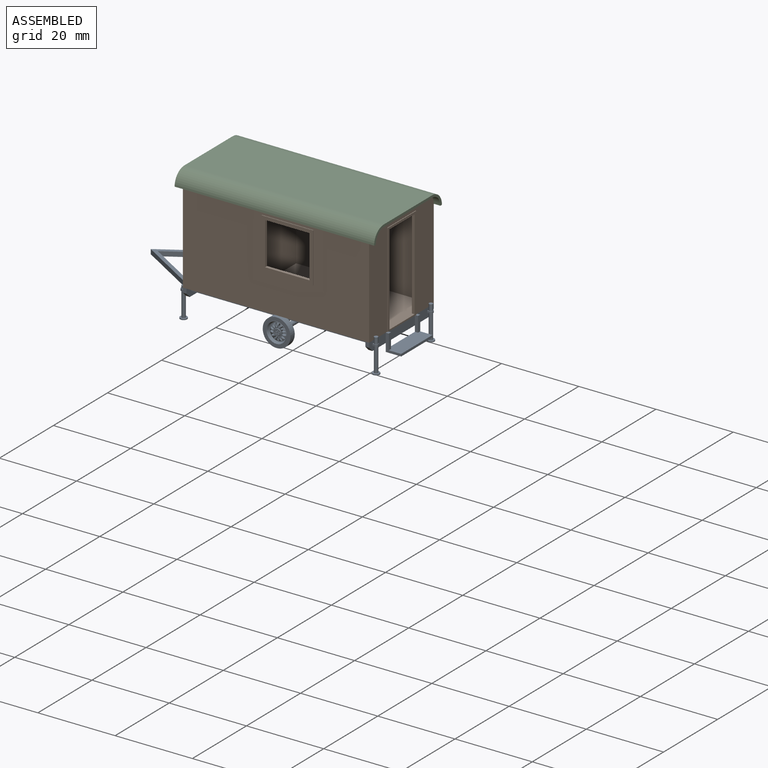
[diagram: assembled view]
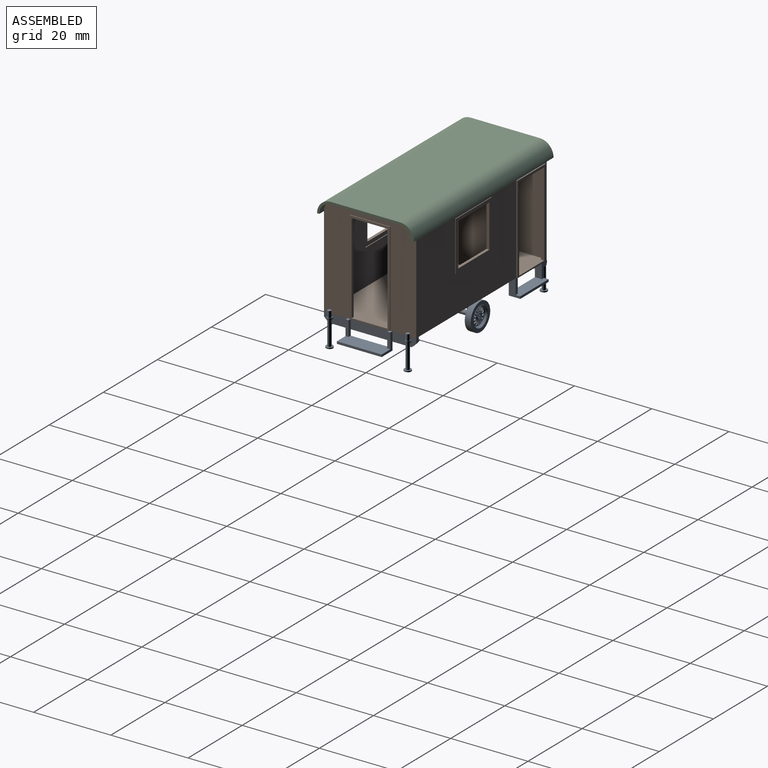
[diagram: assembled view, second angle]
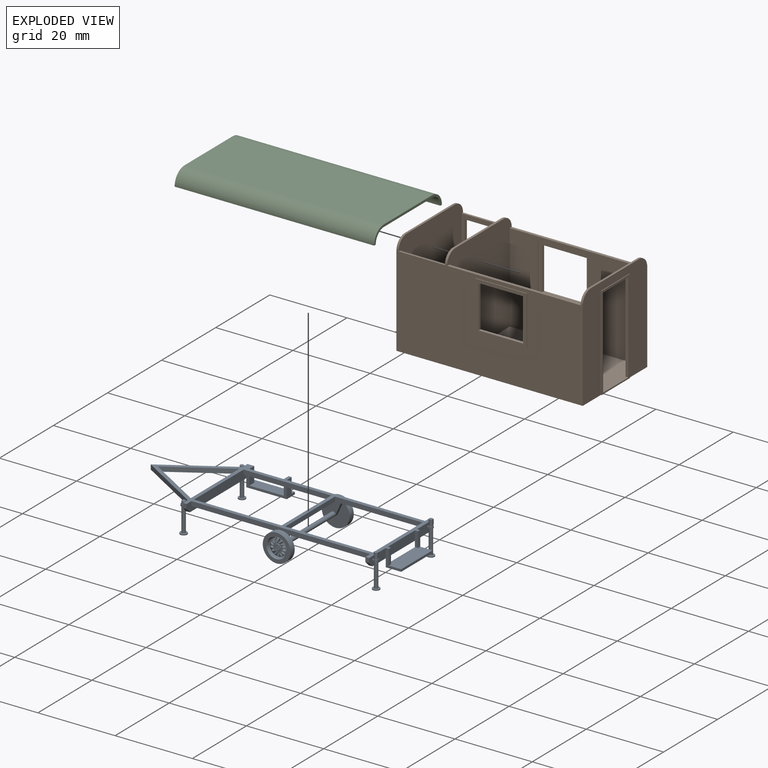
[diagram: exploded view]
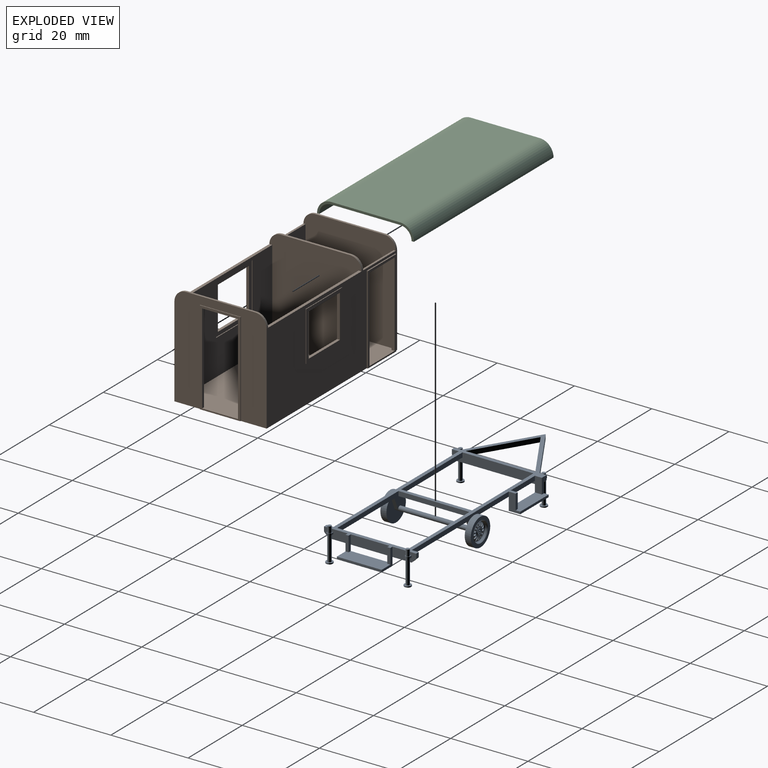
[diagram: exploded view, second angle]
ASSEMBLY  parts=3 mates=2
PART A: 184 faces, bbox 68.9x25.1x8.7 mm
  f0: plane 3.9x1.76mm, normal (0,-1,0), area 4.3mm2, adj f1,f152,f180,f181,f182,f183
  f1: plane 3.9x1.8mm, normal (-1,0,0), area 7mm2, adj f0,f2,f151,f152,f183
  f2: plane 10.5x3.3mm, normal (0,1,0), area 10.6mm2, adj f1,f3,f5,f145,f146,f150,f182,f183
  f3: plane 3.9x1.8mm, normal (1,0,0), area 7mm2, adj f2,f4,f151,f152,f183
  f4: plane 3.9x0.8mm, normal (0,-1,0), area 3.1mm2, adj f3,f5,f152,f183
  f5: plane 4.5x3mm, normal (-1,0,0), area 8.8mm2, adj f2,f4,f6,f144,f145,f152,f183
  f6: plane 35.82x1.2mm, normal (0,-1,0), area 41.4mm2, adj f5,f7,f102,f103,f150,f152
  f7: cylinder r=3.6mm len=7.2mm, axis (0,1,0), area 35.3mm2, adj f6,f8,f63
  f8: plane 7.2x6.6mm, normal (0,1,0), area 30.6mm2, adj f7,f9,f61,f62
  f9: cylinder r=0.6mm len=20.28mm, axis (0,-1,0), area 71.9mm2, adj f8,f10,f14,f58,f59,f60,f61,f62
  f10: plane 46.32x4.44mm, normal (0,1,0), area 61.8mm2, adj f9,f11,f12,f13,f61,f62,f102,f103
  f11: plane 18.36x1.2mm, normal (1,0,0), area 22mm2, adj f10,f12,f60,f152
  f12: plane 18.36x0.96mm, normal (0,0,-1), area 17.6mm2, adj f10,f11,f13,f60
  f13: plane 18.36x1.2mm, normal (-1,0,0), area 22mm2, adj f10,f12,f60,f152
  f14: plane 3.24x1.44mm, normal (0.91,0,-0.41), area 3.4mm2, adj f9,f15,f58,f60
  f15: plane 21.17x0.96mm, normal (0,0,-1), area 20.3mm2, adj f14,f16,f60,f146
  f16: plane 46.32x1.2mm, normal (0,1,0), area 54mm2, adj f15,f17,f18,f103,f146,f152
  f17: plane 21.17x0.96mm, normal (0,0,-1), area 20.3mm2, adj f16,f59,f60,f103
  f18: cylinder r=3.6mm len=7.2mm, axis (0,-1,0), area 35.3mm2, adj f16,f19,f58
  f19: plane 7.2x7.2mm, normal (0,1,0), area 18.8mm2, adj f18,f20
  f20: revolved ~5.28x5.27mm, area 14.1mm2, adj f19,f21,f23,f25,f27,f29,f31,f33
  f21: extruded ~0.98x0.89mm, area 1.9mm2, adj f20,f22
  f22: plane 0.98x0.5mm, normal (0,-1,0), area 0.4mm2, adj f21
  f23: extruded ~0.89x0.85mm, area 1.9mm2, adj f20,f24
  f24: plane 0.85x0.69mm, normal (0,1,0), area 0.4mm2, adj f23
  f25: extruded ~0.89x0.89mm, area 1.9mm2, adj f20,f26
  f26: plane 0.9x0.63mm, normal (0,1,0), area 0.4mm2, adj f25
  f27: extruded ~0.97x0.89mm, area 1.9mm2, adj f20,f28
  f28: plane 0.97x0.51mm, normal (0,1,0), area 0.4mm2, adj f27
  f29: extruded ~0.93x0.89mm, area 1.9mm2, adj f20,f30
  f30: plane 0.93x0.58mm, normal (0,1,0), area 0.4mm2, adj f29
  f31: extruded ~0.89x0.85mm, area 1.9mm2, adj f20,f32
  f32: plane 0.85x0.69mm, normal (0,1,0), area 0.4mm2, adj f31
  f33: extruded ~0.89x0.89mm, area 1.9mm2, adj f20,f34
  f34: plane 0.9x0.63mm, normal (0,1,0), area 0.4mm2, adj f33
  f35: extruded ~0.97x0.89mm, area 1.9mm2, adj f20,f36
  f36: plane 0.97x0.51mm, normal (0,1,0), area 0.4mm2, adj f35
  f37: extruded ~0.93x0.89mm, area 1.9mm2, adj f20,f38
  f38: plane 0.93x0.58mm, normal (0,1,0), area 0.4mm2, adj f37
  f39: extruded ~0.89x0.8mm, area 1.9mm2, adj f20,f40
  f40: plane 0.8x0.75mm, normal (0,1,0), area 0.4mm2, adj f39
  f41: extruded ~0.95x0.89mm, area 1.9mm2, adj f20,f42
  f42: plane 0.96x0.54mm, normal (0,1,0), area 0.4mm2, adj f41
  f43: extruded ~0.95x0.89mm, area 1.9mm2, adj f20,f44
  f44: plane 0.96x0.54mm, normal (0,1,0), area 0.4mm2, adj f43
  f45: extruded ~0.89x0.8mm, area 1.9mm2, adj f20,f46
  f46: plane 0.8x0.75mm, normal (0,1,0), area 0.4mm2, adj f45
  f47: plane 1.44x1.44mm, normal (0,1,0), area 1.3mm2, adj f20,f48,f50,f52,f54,f56
  f48: cylinder r=0.15mm len=0.3mm, axis (0,1,0), area 0.2mm2, adj f47,f49
  f49: plane 0.3x0.3mm, normal (0,1,0), area 0.1mm2, adj f48
  f50: cylinder r=0.15mm len=0.3mm, axis (0,1,0), area 0.2mm2, adj f47,f51
  f51: plane 0.3x0.3mm, normal (0,1,0), area 0.1mm2, adj f50
  f52: cylinder r=0.15mm len=0.3mm, axis (0,1,0), area 0.2mm2, adj f47,f53
  f53: plane 0.3x0.3mm, normal (0,1,0), area 0.1mm2, adj f52
  f54: cylinder r=0.15mm len=0.3mm, axis (0,1,0), area 0.2mm2, adj f47,f55
  f55: plane 0.3x0.3mm, normal (0,1,0), area 0.1mm2, adj f54
  f56: cylinder r=0.15mm len=0.3mm, axis (0,1,0), area 0.2mm2, adj f47,f57
  f57: plane 0.3x0.3mm, normal (0,1,0), area 0.1mm2, adj f56
  f58: plane 7.2x6.6mm, normal (0,-1,0), area 30.6mm2, adj f9,f14,f18,f59
  f59: plane 3.24x1.44mm, normal (-0.91,0,-0.41), area 3.4mm2, adj f9,f17,f58,f60
  f60: plane 46.32x4.44mm, normal (0,-1,0), area 61.8mm2, adj f9,f11,f12,f13,f14,f15,f17,f59
  f61: plane 3.24x1.44mm, normal (-0.91,0,-0.41), area 3.4mm2, adj f8,f9,f10,f102
  f62: plane 3.24x1.44mm, normal (0.91,0,-0.41), area 3.4mm2, adj f8,f9,f10,f150
  f63: plane 7.2x7.2mm, normal (0,-1,0), area 18.8mm2, adj f7,f64
  f64: revolved ~5.28x5.27mm, area 14.1mm2, adj f63,f65,f67,f69,f71,f73,f75,f77
  f65: extruded ~0.98x0.89mm, area 1.9mm2, adj f64,f66
  f66: plane 0.98x0.5mm, normal (0,1,0), area 0.4mm2, adj f65
  f67: extruded ~0.89x0.85mm, area 1.9mm2, adj f64,f68
  f68: plane 0.85x0.69mm, normal (0,-1,0), area 0.4mm2, adj f67
  f69: extruded ~0.89x0.89mm, area 1.9mm2, adj f64,f70
  f70: plane 0.9x0.63mm, normal (0,-1,0), area 0.4mm2, adj f69
  f71: extruded ~0.97x0.89mm, area 1.9mm2, adj f64,f72
  f72: plane 0.97x0.51mm, normal (0,-1,0), area 0.4mm2, adj f71
  f73: extruded ~0.93x0.89mm, area 1.9mm2, adj f64,f74
  f74: plane 0.93x0.58mm, normal (0,-1,0), area 0.4mm2, adj f73
  f75: extruded ~0.89x0.85mm, area 1.9mm2, adj f64,f76
  f76: plane 0.85x0.69mm, normal (0,-1,0), area 0.4mm2, adj f75
  f77: extruded ~0.89x0.89mm, area 1.9mm2, adj f64,f78
  f78: plane 0.9x0.63mm, normal (0,-1,0), area 0.4mm2, adj f77
  f79: extruded ~0.97x0.89mm, area 1.9mm2, adj f64,f80
  f80: plane 0.97x0.51mm, normal (0,-1,0), area 0.4mm2, adj f79
  f81: extruded ~0.93x0.89mm, area 1.9mm2, adj f64,f82
  f82: plane 0.93x0.58mm, normal (0,-1,0), area 0.4mm2, adj f81
  f83: extruded ~0.89x0.8mm, area 1.9mm2, adj f64,f84
  f84: plane 0.8x0.75mm, normal (0,-1,0), area 0.4mm2, adj f83
  f85: extruded ~0.95x0.89mm, area 1.9mm2, adj f64,f86
  f86: plane 0.96x0.54mm, normal (0,-1,0), area 0.4mm2, adj f85
  f87: extruded ~0.95x0.89mm, area 1.9mm2, adj f64,f88
  f88: plane 0.96x0.54mm, normal (0,-1,0), area 0.4mm2, adj f87
  f89: extruded ~0.89x0.8mm, area 1.9mm2, adj f64,f90
  f90: plane 0.8x0.75mm, normal (0,-1,0), area 0.4mm2, adj f89
  f91: plane 1.44x1.44mm, normal (0,-1,0), area 1.3mm2, adj f64,f92,f94,f96,f98,f100
  f92: cylinder r=0.15mm len=0.3mm, axis (0,-1,0), area 0.2mm2, adj f91,f93
  f93: plane 0.3x0.3mm, normal (0,-1,0), area 0.1mm2, adj f92
  f94: cylinder r=0.15mm len=0.3mm, axis (0,-1,0), area 0.2mm2, adj f91,f95
  f95: plane 0.3x0.3mm, normal (0,-1,0), area 0.1mm2, adj f94
  f96: cylinder r=0.15mm len=0.3mm, axis (0,-1,0), area 0.2mm2, adj f91,f97
  f97: plane 0.3x0.3mm, normal (0,-1,0), area 0.1mm2, adj f96
  f98: cylinder r=0.15mm len=0.3mm, axis (0,-1,0), area 0.2mm2, adj f91,f99
  f99: plane 0.3x0.3mm, normal (0,-1,0), area 0.1mm2, adj f98
  f100: cylinder r=0.15mm len=0.3mm, axis (0,-1,0), area 0.2mm2, adj f91,f101
  f101: plane 0.3x0.3mm, normal (0,-1,0), area 0.1mm2, adj f100
  f102: plane 21.17x0.96mm, normal (0,0,-1), area 20.3mm2, adj f6,f10,f61,f103
  f103: plane 23.88x2.4mm, normal (1,0,0), area 53.6mm2, adj f6,f10,f16,f17,f60,f102,f104,f140
  f104: plane 1.2x0.96mm, normal (0,1,0), area 1.2mm2, adj f103,f105,f140,f152
  f105: plane 6.14x2.4mm, normal (-1,0,0), area 13.4mm2, adj f104,f106,f129,f131,f136,f137,f140,f141
  f106: plane 4.5x4mm, normal (0,1,0), area 5.5mm2, adj f105,f107,f125,f126,f127,f128,f152
  f107: plane 3.9x0.8mm, normal (-1,0,0), area 3.1mm2, adj f106,f108,f125,f152
  f108: plane 3.9x0.8mm, normal (0,-1,0), area 3.1mm2, adj f107,f109,f125,f128,f152
  f109: plane 10x2.4mm, normal (-1,0,0), area 24mm2, adj f108,f110,f141,f152
  f110: plane 3.9x0.8mm, normal (0,1,0), area 3.1mm2, adj f109,f111,f125,f128,f152
  f111: plane 3.9x0.8mm, normal (-1,0,0), area 3.1mm2, adj f110,f112,f125,f152
  f112: plane 4.5x4mm, normal (0,-1,0), area 5.5mm2, adj f111,f113,f125,f126,f127,f128,f152
  f113: plane 6.14x2.4mm, normal (-1,0,0), area 13.4mm2, adj f112,f114,f116,f119,f120,f141,f142,f143
  f114: plane 0.54x0.48mm, normal (0,-1,0), area 0.3mm2, adj f113,f115,f116,f120
  f115: cylinder r=0.6mm len=1.2mm, axis (0,0,-1), area 0.9mm2, adj f114,f116,f119,f120
  f116: plane 1.2x1.14mm, normal (0,0,1), area 0.5mm2, adj f113,f114,f115,f117,f119
  f117: cylinder r=0.48mm len=1.62mm, axis (0,0,1), area 4.9mm2, adj f116,f118
  f118: plane 0.96x0.96mm, normal (0,0,1), area 0.7mm2, adj f117
  f119: plane 0.54x0.48mm, normal (0,1,0), area 0.3mm2, adj f113,f115,f116,f120
  f120: plane 1.2x1.14mm, normal (0,0,-1), area 0.5mm2, adj f113,f114,f115,f119,f121
  f121: cylinder r=0.48mm len=6.3mm, axis (0,0,1), area 19mm2, adj f120,f122
  f122: plane 1.8x1.8mm, normal (0,0,1), area 1.8mm2, adj f121,f123
  f123: cylinder r=0.9mm len=1.8mm, axis (0,0,-1), area 1.7mm2, adj f122,f124
  f124: plane 1.8x1.8mm, normal (0,0,-1), area 2.5mm2, adj f123
  f125: plane 11.6x4mm, normal (0,0,1), area 45.1mm2, adj f106,f107,f108,f110,f111,f112,f126,f128
  f126: plane 11.6x0.6mm, normal (-1,0,0), area 7mm2, adj f106,f112,f125,f127
  f127: plane 11.6x4mm, normal (0,0,-1), area 46.4mm2, adj f106,f112,f126,f128
  f128: plane 11.6x2.1mm, normal (1,0,0), area 9.4mm2, adj f106,f108,f110,f112,f125,f127,f141
  f129: plane 0.54x0.48mm, normal (0,1,0), area 0.3mm2, adj f105,f130,f131,f137
  f130: cylinder r=0.6mm len=1.2mm, axis (0,0,-1), area 0.9mm2, adj f129,f131,f136,f137
  f131: plane 1.2x1.14mm, normal (0,0,-1), area 0.5mm2, adj f105,f129,f130,f132,f136
  f132: cylinder r=0.48mm len=6.3mm, axis (0,0,1), area 19mm2, adj f131,f133
  f133: plane 1.8x1.8mm, normal (0,0,1), area 1.8mm2, adj f132,f134
  f134: cylinder r=0.9mm len=1.8mm, axis (0,0,-1), area 1.7mm2, adj f133,f135
  f135: plane 1.8x1.8mm, normal (0,0,-1), area 2.5mm2, adj f134
  f136: plane 0.54x0.48mm, normal (0,-1,0), area 0.3mm2, adj f105,f130,f131,f137
  f137: plane 1.2x1.14mm, normal (0,0,1), area 0.5mm2, adj f105,f129,f130,f136,f138
  f138: cylinder r=0.48mm len=1.62mm, axis (0,0,1), area 4.9mm2, adj f137,f139
  f139: plane 0.96x0.96mm, normal (0,0,1), area 0.7mm2, adj f138
  f140: plane 1.2x1.2mm, normal (0,0.71,-0.71), area 1.6mm2, adj f103,f104,f105,f141
  f141: plane 21.48x0.96mm, normal (0,0,-1), area 20.6mm2, adj f103,f105,f109,f113,f128,f140,f142
  f142: plane 1.2x1.2mm, normal (0,-0.71,-0.71), area 1.6mm2, adj f103,f113,f141,f143
  f143: plane 1.2x0.96mm, normal (0,-1,0), area 1.2mm2, adj f103,f113,f142,f152
  f144: plane 10.5x0.6mm, normal (0,-1,0), area 6.3mm2, adj f5,f145,f182,f183
  f145: plane 10.5x3mm, normal (0,0,-1), area 31.5mm2, adj f2,f5,f144,f182
  f146: plane 22.08x2.4mm, normal (-1,0,0), area 50mm2, adj f2,f10,f15,f16,f60,f147,f148,f149
  f147: plane 21.48x0.96mm, normal (0,0,-1), area 20.6mm2, adj f146,f148,f180,f181,f182
  f148: plane 1.2x1.2mm, normal (0,0.71,-0.71), area 1.6mm2, adj f146,f147,f149,f180
  f149: plane 1.2x0.96mm, normal (0,1,0), area 1.2mm2, adj f146,f148,f152,f180
  f150: plane 21.17x0.96mm, normal (0,0,-1), area 20.3mm2, adj f2,f6,f10,f62,f146,f151
  f151: plane 8.9x1.2mm, normal (0,-1,0), area 10.7mm2, adj f1,f3,f150,f152
  f152: plane 65.72x23.88mm, normal (0,0,1), area 192mm2, adj f0,f1,f3,f4,f5,f6,f10,f11
  f153: plane 16.68x10.14mm, normal (0.52,0.85,0), area 23.4mm2, adj f152,f154,f165,f166,f180
  f154: plane 0.6x0.48mm, normal (0,-1,0), area 0.3mm2, adj f153,f155,f159,f160
  f155: plane 1.32x1.26mm, normal (0,0,1), area 0.8mm2, adj f154,f156,f157,f159,f180
  f156: plane 0.6x0.48mm, normal (0,1,0), area 0.3mm2, adj f155,f159,f160,f180
  f157: cylinder r=0.48mm len=0.96mm, axis (0,0,-1), area 2.2mm2, adj f155,f158
  f158: plane 0.96x0.96mm, normal (0,0,1), area 0.7mm2, adj f157
  f159: cylinder r=0.66mm len=1.32mm, axis (0,0,-1), area 1mm2, adj f154,f155,f156,f160
  f160: plane 1.32x1.26mm, normal (0,0,-1), area 0.8mm2, adj f154,f156,f159,f161,f180
  f161: cylinder r=0.48mm len=6.3mm, axis (0,0,1), area 19mm2, adj f160,f162
  f162: plane 1.8x1.8mm, normal (0,0,1), area 1.8mm2, adj f161,f163
  f163: cylinder r=0.9mm len=1.8mm, axis (0,0,-1), area 1.7mm2, adj f162,f164
  f164: plane 1.8x1.8mm, normal (0,0,-1), area 2.5mm2, adj f163
  f165: plane 20.28x16.68mm, normal (0,0,-1), area 35.4mm2, adj f153,f166,f178,f179,f180
  f166: plane 16.68x10.14mm, normal (0.52,-0.85,0), area 23.4mm2, adj f152,f153,f165,f167,f180
  f167: plane 0.6x0.48mm, normal (0,1,0), area 0.3mm2, adj f166,f168,f170,f173
  f168: cylinder r=0.66mm len=1.32mm, axis (0,0,-1), area 1mm2, adj f167,f169,f170,f173
  f169: plane 0.6x0.48mm, normal (0,-1,0), area 0.3mm2, adj f168,f170,f173,f180
  f170: plane 1.32x1.26mm, normal (0,0,1), area 0.8mm2, adj f167,f168,f169,f171,f180
  f171: cylinder r=0.48mm len=0.96mm, axis (0,0,-1), area 2.2mm2, adj f170,f172
  f172: plane 0.96x0.96mm, normal (0,0,1), area 0.7mm2, adj f171
  f173: plane 1.32x1.26mm, normal (0,0,-1), area 0.8mm2, adj f167,f168,f169,f174,f180
  f174: cylinder r=0.48mm len=6.3mm, axis (0,0,1), area 19mm2, adj f173,f175
  f175: plane 1.8x1.8mm, normal (0,0,1), area 1.8mm2, adj f174,f176
  f176: cylinder r=0.9mm len=1.8mm, axis (0,0,-1), area 1.7mm2, adj f175,f177
  f177: plane 1.8x1.8mm, normal (0,0,-1), area 2.5mm2, adj f176
  f178: plane 14.83x9.02mm, normal (-0.52,0.85,0), area 20.8mm2, adj f152,f165,f179,f180
  f179: plane 14.83x9.02mm, normal (-0.52,-0.85,0), area 20.8mm2, adj f152,f165,f178,f180
  f180: plane 23.88x2.4mm, normal (1,0,0), area 51.9mm2, adj f0,f147,f148,f149,f152,f153,f155,f156
  f181: plane 1.2x1.2mm, normal (0,-0.71,-0.71), area 1.6mm2, adj f0,f147,f180,f182
  f182: plane 3.3x3mm, normal (1,0,0), area 5.2mm2, adj f0,f2,f144,f145,f147,f181,f183
  f183: plane 10.5x3mm, normal (0,0,1), area 28.6mm2, adj f0,f1,f2,f3,f4,f5,f144,f182
PART B: 70 faces, bbox 48.4x24.4x26.4 mm
  f0: plane 35.28x22.4mm, normal (0,0,1), area 780.8mm2, adj f2,f3,f42,f44,f55,f64,f69
  f1: plane 13.52x13.04mm, normal (0,1,0), area 49.1mm2, adj f17,f18,f19,f20,f65,f66,f67,f68
  f2: plane 26.04x23.88mm, normal (-1,0,0), area 366.3mm2, adj f0,f11,f12,f42,f43,f44,f45,f46
  f3: plane 26.04x23.88mm, normal (1,0,0), area 583.9mm2, adj f0,f11,f12,f56,f57,f58,f64,f69
  f4: plane 12x0.54mm, normal (0,0,1), area 6.5mm2, adj f5,f15,f51,f59
  f5: plane 23.04x12mm, normal (0,1,0), area 276.5mm2, adj f4,f8,f51,f59
  f6: plane 12x0.54mm, normal (0,0,1), area 6.5mm2, adj f7,f9,f51,f59
  f7: plane 23.04x12mm, normal (0,-1,0), area 73.4mm2, adj f6,f8,f29,f30,f31,f51,f59
  f8: plane 23.64x12mm, normal (0,0,1), area 281.4mm2, adj f5,f7,f29,f31,f41,f51,f59
  f9: plane 48.24x23.4mm, normal (0,1,0), area 718.4mm2, adj f6,f10,f12,f14,f16,f33,f34,f35
  f10: plane 26.4x23.88mm, normal (1,0,0), area 370.8mm2, adj f9,f15,f16,f45,f46,f47,f52,f53
  f11: plane 34.56x0.74mm, normal (0,0,1), area 25.6mm2, adj f2,f3,f15,f69
  f12: plane 34.56x0.74mm, normal (0,0,1), area 25.6mm2, adj f2,f3,f9,f64
  f13: plane 13.52x13.04mm, normal (0,-1,0), area 49.1mm2, adj f26,f27,f28,f32,f60,f61,f62,f63
  f14: plane 26.4x23.88mm, normal (-1,0,0), area 626.6mm2, adj f9,f15,f16,f48,f49,f50
  f15: plane 48.24x23.4mm, normal (0,-1,0), area 957.8mm2, adj f4,f10,f11,f14,f16,f21,f22,f23
  f16: plane 48.42x24.18mm, normal (0,0,-1), area 1157mm2, adj f9,f10,f14,f15,f38,f40,f41,f53
  f17: plane 11.52x0.72mm, normal (0,0,-1), area 8.3mm2, adj f1,f18,f20,f25
  f18: plane 11.04x0.72mm, normal (-1,0,0), area 7.9mm2, adj f1,f17,f19,f25
  f19: plane 11.52x0.72mm, normal (0,0,1), area 8.3mm2, adj f1,f18,f20,f25
  f20: plane 11.04x0.72mm, normal (1,0,0), area 7.9mm2, adj f1,f17,f19,f25
  f21: plane 12.84x0.18mm, normal (1,0,0), area 2.3mm2, adj f15,f22,f24,f25
  f22: plane 13.32x0.18mm, normal (0,0,1), area 2.4mm2, adj f15,f21,f23,f25
  f23: plane 12.84x0.18mm, normal (-1,0,0), area 2.3mm2, adj f15,f22,f24,f25
  f24: plane 13.32x0.18mm, normal (0,0,-1), area 2.4mm2, adj f15,f21,f23,f25
  f25: plane 13.32x12.84mm, normal (0,-1,0), area 43.8mm2, adj f17,f18,f19,f20,f21,f22,f23,f24
  f26: plane 11.04x0.72mm, normal (-1,0,0), area 7.9mm2, adj f13,f27,f32,f37
  f27: plane 11.52x0.72mm, normal (0,0,-1), area 8.3mm2, adj f13,f26,f28,f37
  f28: plane 11.04x0.72mm, normal (1,0,0), area 7.9mm2, adj f13,f27,f32,f37
  f29: plane 21.84x0.84mm, normal (-1,0,0), area 18.3mm2, adj f7,f8,f30,f41
  f30: plane 9.3x0.84mm, normal (0,0,-1), area 7.8mm2, adj f7,f29,f31,f41
  f31: plane 21.84x0.84mm, normal (1,0,0), area 18.3mm2, adj f7,f8,f30,f41
  f32: plane 11.52x0.72mm, normal (0,0,1), area 8.3mm2, adj f13,f26,f28,f37
  f33: plane 12.84x0.18mm, normal (-1,0,0), area 2.3mm2, adj f9,f34,f36,f37
  f34: plane 13.32x0.18mm, normal (0,0,1), area 2.4mm2, adj f9,f33,f35,f37
  f35: plane 12.84x0.18mm, normal (1,0,0), area 2.3mm2, adj f9,f34,f36,f37
  f36: plane 13.32x0.18mm, normal (0,0,-1), area 2.4mm2, adj f9,f33,f35,f37
  f37: plane 13.32x12.84mm, normal (0,1,0), area 43.8mm2, adj f26,f27,f28,f32,f33,f34,f35,f36
  f38: plane 22.8x0.3mm, normal (-1,0,0), area 6.8mm2, adj f9,f16,f39,f41
  f39: plane 10.5x0.3mm, normal (0,0,1), area 3.1mm2, adj f9,f38,f40,f41
  f40: plane 22.8x0.3mm, normal (1,0,0), area 6.8mm2, adj f9,f16,f39,f41
  f41: plane 22.8x10.5mm, normal (0,1,0), area 36.3mm2, adj f8,f16,f29,f30,f31,f38,f39,f40
  f42: plane 23.4x0.72mm, normal (0,1,0), area 16.8mm2, adj f0,f2,f43,f55
  f43: plane 9.3x0.72mm, normal (0,0,-1), area 6.7mm2, adj f2,f42,f44,f55
  f44: plane 23.4x0.72mm, normal (0,-1,0), area 16.8mm2, adj f0,f2,f43,f55
  f45: cylinder r=3mm len=3mm, axis (1,0,0), area 2.5mm2, adj f2,f9,f10,f46
  f46: plane 17.88x0.54mm, normal (0,0,1), area 9.7mm2, adj f2,f10,f45,f47
  f47: cylinder r=3mm len=3mm, axis (1,0,0), area 2.5mm2, adj f2,f10,f15,f46
  f48: cylinder r=3mm len=3mm, axis (-1,0,0), area 2.5mm2, adj f14,f15,f49,f51
  f49: plane 17.88x0.54mm, normal (0,0,1), area 9.7mm2, adj f14,f48,f50,f51
  f50: cylinder r=3mm len=3mm, axis (-1,0,0), area 2.5mm2, adj f9,f14,f49,f51
  f51: plane 26.04x23.88mm, normal (1,0,0), area 593.1mm2, adj f4,f5,f6,f7,f8,f48,f49,f50
  f52: plane 10.5x0.18mm, normal (0,0,1), area 1.9mm2, adj f10,f53,f54,f55
  f53: plane 24.36x0.18mm, normal (0,-1,0), area 4.4mm2, adj f10,f16,f52,f55
  f54: plane 24.36x0.18mm, normal (0,1,0), area 4.4mm2, adj f10,f16,f52,f55
  f55: plane 24.36x10.5mm, normal (1,0,0), area 38.2mm2, adj f0,f16,f42,f43,f44,f52,f53,f54
  f56: cylinder r=3mm len=3mm, axis (-1,0,0), area 2.8mm2, adj f3,f9,f57,f59
  f57: plane 17.88x0.6mm, normal (0,0,1), area 10.7mm2, adj f3,f56,f58,f59
  f58: cylinder r=3mm len=3mm, axis (-1,0,0), area 2.8mm2, adj f3,f15,f57,f59
  f59: plane 26.04x23.88mm, normal (-1,0,0), area 593.1mm2, adj f4,f5,f6,f7,f8,f56,f57,f58
  f60: plane 13.52x0.2mm, normal (0,0,1), area 2.7mm2, adj f13,f61,f63,f64
  f61: plane 13.04x0.2mm, normal (1,0,0), area 2.6mm2, adj f13,f60,f62,f64
  f62: plane 13.52x0.2mm, normal (0,0,-1), area 2.7mm2, adj f13,f61,f63,f64
  f63: plane 13.04x0.2mm, normal (-1,0,0), area 2.6mm2, adj f13,f60,f62,f64
  f64: plane 34.56x23.04mm, normal (0,-1,0), area 620mm2, adj f0,f2,f3,f12,f60,f61,f62,f63
  f65: plane 13.04x0.2mm, normal (1,0,0), area 2.6mm2, adj f1,f66,f68,f69
  f66: plane 13.52x0.2mm, normal (0,0,1), area 2.7mm2, adj f1,f65,f67,f69
  f67: plane 13.04x0.2mm, normal (-1,0,0), area 2.6mm2, adj f1,f66,f68,f69
  f68: plane 13.52x0.2mm, normal (0,0,-1), area 2.7mm2, adj f1,f65,f67,f69
  f69: plane 34.56x23.04mm, normal (0,1,0), area 620mm2, adj f0,f2,f3,f11,f65,f66,f67,f68
PART C: 22 faces, bbox 25.1x51.7x3.6 mm
  f0: plane 45.16x17.88mm, normal (0,0,-1), area 807.5mm2, adj f2,f4,f13,f17
  f1: plane 17.88x2.25mm, normal (0,0,-1), area 40.2mm2, adj f2,f4,f11,f19
  f2: cylinder r=3mm len=51.66mm, axis (0,1,0), area 243.4mm2, adj f0,f1,f3,f9,f10,f11,f12,f18
  f3: plane 17.88x2.25mm, normal (0,0,-1), area 40.2mm2, adj f2,f4,f10,f15
  f4: cylinder r=3mm len=51.66mm, axis (0,1,0), area 243.4mm2, adj f0,f1,f3,f5,f10,f11,f14,f20
  f5: plane 51.66x0.6mm, normal (0,0,-1), area 31mm2, adj f4,f6,f10,f11
  f6: cylinder r=3.6mm len=51.66mm, axis (0,1,0), area 292.1mm2, adj f5,f7,f10,f11
  f7: plane 51.66x17.88mm, normal (0,0,1), area 923.7mm2, adj f6,f8,f10,f11
  f8: cylinder r=3.6mm len=51.66mm, axis (0,1,0), area 292.1mm2, adj f7,f9,f10,f11
  f9: plane 51.66x0.6mm, normal (0,0,-1), area 31mm2, adj f2,f8,f10,f11
  f10: plane 25.08x3.6mm, normal (0,-1,0), area 16.9mm2, adj f2,f3,f4,f5,f6,f7,f8,f9
  f11: plane 25.08x3.6mm, normal (0,1,0), area 16.9mm2, adj f1,f2,f4,f5,f6,f7,f8,f9
  f12: plane 1x1mm, normal (-1,0,0), area 1mm2, adj f2,f13,f15,f16
  f13: plane 17.88x1mm, normal (0,1,0), area 17.9mm2, adj f0,f12,f14,f16
  f14: plane 1x1mm, normal (1,0,0), area 1mm2, adj f4,f13,f15,f16
  f15: plane 17.88x1mm, normal (0,-1,0), area 17.9mm2, adj f3,f12,f14,f16
  f16: plane 17.88x1mm, normal (0,0,-1), area 17.9mm2, adj f12,f13,f14,f15
  f17: plane 17.88x1mm, normal (0,-1,0), area 17.9mm2, adj f0,f18,f20,f21
  f18: plane 1x1mm, normal (-1,0,0), area 1mm2, adj f2,f17,f19,f21
  f19: plane 17.88x1mm, normal (0,1,0), area 17.9mm2, adj f1,f18,f20,f21
  f20: plane 1x1mm, normal (1,0,0), area 1mm2, adj f4,f17,f19,f21
  f21: plane 17.88x1mm, normal (0,0,-1), area 17.9mm2, adj f17,f18,f19,f20
PLACE A rot(axis=(0,0,1),180deg) t=(0,0,-1.2)mm
PLACE B at identity fixed
PLACE C rot(axis=(0,0,-1),90deg) t=(25.83,0,23.4)mm
MATE fastened A.f152 <-> B.f16  axis (0,0,1) through (24.12,-11.94,0)mm
MATE planar C.f19 <-> B.f2  axis (1,0,0) through (23.58,0,26.4)mm
